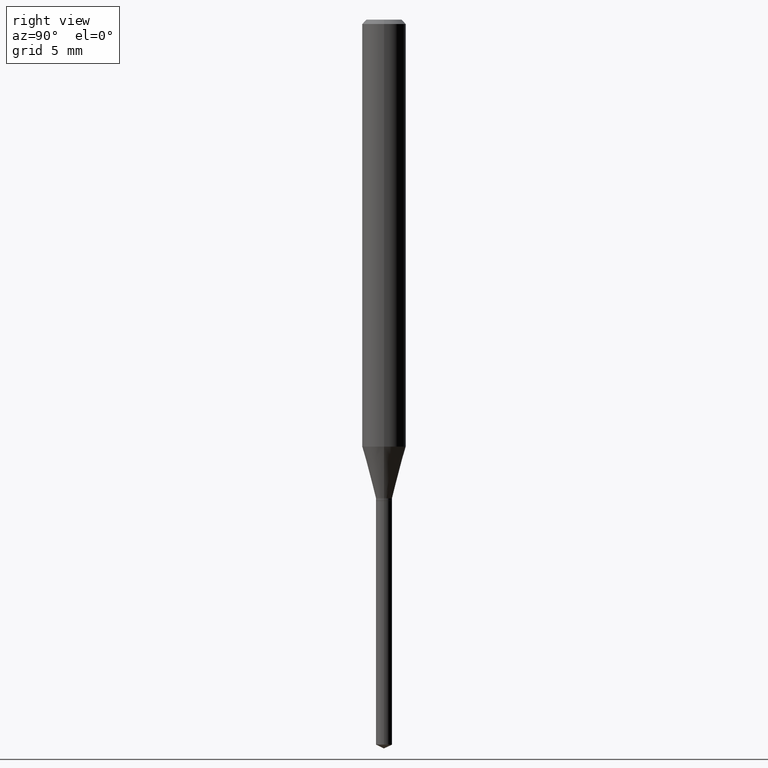
[diagram: clean part render]
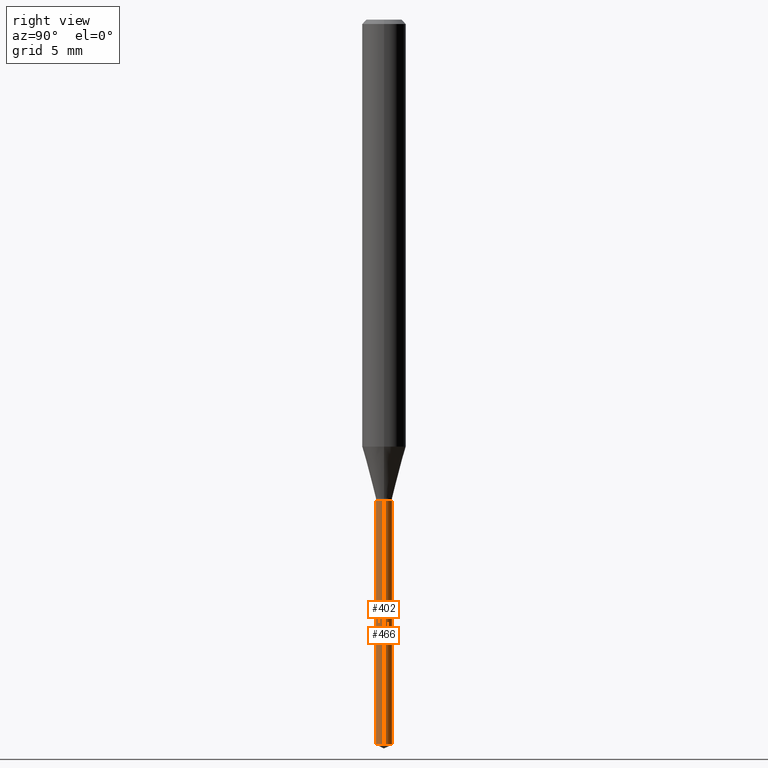
[diagram: same view with one multi-face feature highlighted, each face labeled with its STEP entity id]
A machine part, right view. The highlighted faces form ONE feature: a constant-radius fillet chain: 2 tangent blend faces with common blend radius 0.5499 mm. The faces share edges in the B-rep.
Their STEP definitions:
[1] entity #402 (Cylinder):
#10 = VERTEX_POINT ( 'NONE', #36 ) ;
#36 = CARTESIAN_POINT ( 'NONE',  ( 0.02164999999999999564, -4.689059438066343179E-15, -1.299699999999999855 ) ) ;
#42 = AXIS2_PLACEMENT_3D ( 'NONE', #217, #479, #243 ) ;
#57 = CARTESIAN_POINT ( 'NONE',  ( 3.178375807398821559E-29, -4.537878296094435448E-15, -1.299699999999999855 ) ) ;
#109 = EDGE_CURVE ( 'NONE', #451, #230, #310, .T. ) ;
#116 = EDGE_CURVE ( 'NONE', #451, #454, #209, .T. ) ;
#131 = AXIS2_PLACEMENT_3D ( 'NONE', #134, #288, #286 ) ;
#134 = CARTESIAN_POINT ( 'NONE',  ( 3.178375807398821559E-29, -4.537878296094435448E-15, -1.299699999999999855 ) ) ;
#193 = EDGE_LOOP ( 'NONE', ( #196, #426, #461, #308 ) ) ;
#196 = ORIENTED_EDGE ( 'NONE', *, *, #109, .F. ) ;
#203 = VECTOR ( 'NONE', #405, 39.37007874015748143 ) ;
#207 = DIRECTION ( 'NONE',  ( -2.445468806185136597E-29, 3.491481338843145583E-15, 1.000000000000000000 ) ) ;
#209 = CIRCLE ( 'NONE', #42, 0.02164999999999999564 ) ;
#216 = AXIS2_PLACEMENT_3D ( 'NONE', #57, #207, #389 ) ;
#217 = CARTESIAN_POINT ( 'NONE',  ( 4.790439700363498334E-29, -6.839478294047094651E-15, -1.958904439200944481 ) ) ;
#230 = VERTEX_POINT ( 'NONE', #397 ) ;
#243 = DIRECTION ( 'NONE',  ( 1.000000000000000000, -6.982962677686269866E-15, 0.000000000000000000 ) ) ;
#252 = CIRCLE ( 'NONE', #131, 0.02164999999999999564 ) ;
#259 = CARTESIAN_POINT ( 'NONE',  ( -0.02164999999999999564, -4.384045793802373345E-15, -1.299699999999999855 ) ) ;
#268 = CARTESIAN_POINT ( 'NONE',  ( 0.02164999999999999564, -4.689059438066343179E-15, -1.299699999999999855 ) ) ;
#286 = DIRECTION ( 'NONE',  ( 1.000000000000000000, -6.982962677686269866E-15, 0.000000000000000000 ) ) ;
#288 = DIRECTION ( 'NONE',  ( -2.445468806185136597E-29, 3.491481338843145583E-15, 1.000000000000000000 ) ) ;
#308 = ORIENTED_EDGE ( 'NONE', *, *, #485, .F. ) ;
#310 = LINE ( 'NONE', #259, #203 ) ;
#318 = DIRECTION ( 'NONE',  ( -2.445468806185136877E-29, 3.491481338843145188E-15, 1.000000000000000000 ) ) ;
#351 = CYLINDRICAL_SURFACE ( 'NONE', #216, 0.02164999999999999564 ) ;
#389 = DIRECTION ( 'NONE',  ( 1.000000000000000000, -6.982962677686269866E-15, 0.000000000000000000 ) ) ;
#395 = FACE_OUTER_BOUND ( 'NONE', #193, .T. ) ;
#397 = CARTESIAN_POINT ( 'NONE',  ( -0.02164999999999999564, -5.534845792778702158E-15, -1.299699999999999855 ) ) ;
#402 = ADVANCED_FACE ( 'NONE', ( #395 ), #351, .T. ) ;
#403 = CARTESIAN_POINT ( 'NONE',  ( 0.02165000000000000258, -6.990659436019002382E-15, -1.958904439200944481 ) ) ;
#405 = DIRECTION ( 'NONE',  ( -2.445468806185136877E-29, 3.491481338843145188E-15, 1.000000000000000000 ) ) ;
#406 = CARTESIAN_POINT ( 'NONE',  ( -0.02165000000000000258, -6.685645791755032548E-15, -1.958904439200944481 ) ) ;
#426 = ORIENTED_EDGE ( 'NONE', *, *, #116, .T. ) ;
#437 = EDGE_CURVE ( 'NONE', #454, #10, #457, .T. ) ;
#451 = VERTEX_POINT ( 'NONE', #406 ) ;
#454 = VERTEX_POINT ( 'NONE', #403 ) ;
#457 = LINE ( 'NONE', #268, #459 ) ;
#459 = VECTOR ( 'NONE', #318, 39.37007874015748143 ) ;
#461 = ORIENTED_EDGE ( 'NONE', *, *, #437, .T. ) ;
#479 = DIRECTION ( 'NONE',  ( -2.445468806185136597E-29, 3.491481338843145583E-15, 1.000000000000000000 ) ) ;
#485 = EDGE_CURVE ( 'NONE', #230, #10, #252, .T. ) ;
[2] entity #466 (Cylinder):
#10 = VERTEX_POINT ( 'NONE', #36 ) ;
#16 = CARTESIAN_POINT ( 'NONE',  ( 3.178375807398821559E-29, -4.537878296094435448E-15, -1.299699999999999855 ) ) ;
#20 = CYLINDRICAL_SURFACE ( 'NONE', #171, 0.02164999999999999564 ) ;
#36 = CARTESIAN_POINT ( 'NONE',  ( 0.02164999999999999564, -4.689059438066343179E-15, -1.299699999999999855 ) ) ;
#63 = DIRECTION ( 'NONE',  ( -2.445468806185136597E-29, 3.491481338843145583E-15, 1.000000000000000000 ) ) ;
#100 = CIRCLE ( 'NONE', #222, 0.02164999999999999564 ) ;
#105 = DIRECTION ( 'NONE',  ( -2.445468806185136597E-29, 3.491481338843145583E-15, 1.000000000000000000 ) ) ;
#109 = EDGE_CURVE ( 'NONE', #451, #230, #310, .T. ) ;
#115 = ORIENTED_EDGE ( 'NONE', *, *, #302, .T. ) ;
#132 = AXIS2_PLACEMENT_3D ( 'NONE', #360, #322, #363 ) ;
#142 = DIRECTION ( 'NONE',  ( 1.000000000000000000, -6.982962677686269866E-15, 0.000000000000000000 ) ) ;
#171 = AXIS2_PLACEMENT_3D ( 'NONE', #16, #63, #327 ) ;
#203 = VECTOR ( 'NONE', #405, 39.37007874015748143 ) ;
#222 = AXIS2_PLACEMENT_3D ( 'NONE', #254, #105, #142 ) ;
#227 = ORIENTED_EDGE ( 'NONE', *, *, #437, .F. ) ;
#230 = VERTEX_POINT ( 'NONE', #397 ) ;
#231 = ORIENTED_EDGE ( 'NONE', *, *, #449, .F. ) ;
#254 = CARTESIAN_POINT ( 'NONE',  ( 4.790439700363498334E-29, -6.839478294047094651E-15, -1.958904439200944481 ) ) ;
#259 = CARTESIAN_POINT ( 'NONE',  ( -0.02164999999999999564, -4.384045793802373345E-15, -1.299699999999999855 ) ) ;
#268 = CARTESIAN_POINT ( 'NONE',  ( 0.02164999999999999564, -4.689059438066343179E-15, -1.299699999999999855 ) ) ;
#284 = FACE_OUTER_BOUND ( 'NONE', #453, .T. ) ;
#302 = EDGE_CURVE ( 'NONE', #454, #451, #100, .T. ) ;
#310 = LINE ( 'NONE', #259, #203 ) ;
#316 = ORIENTED_EDGE ( 'NONE', *, *, #109, .T. ) ;
#318 = DIRECTION ( 'NONE',  ( -2.445468806185136877E-29, 3.491481338843145188E-15, 1.000000000000000000 ) ) ;
#322 = DIRECTION ( 'NONE',  ( -2.445468806185136597E-29, 3.491481338843145583E-15, 1.000000000000000000 ) ) ;
#327 = DIRECTION ( 'NONE',  ( 1.000000000000000000, -6.982962677686269866E-15, 0.000000000000000000 ) ) ;
#360 = CARTESIAN_POINT ( 'NONE',  ( 3.178375807398821559E-29, -4.537878296094435448E-15, -1.299699999999999855 ) ) ;
#363 = DIRECTION ( 'NONE',  ( 1.000000000000000000, -6.982962677686269866E-15, 0.000000000000000000 ) ) ;
#397 = CARTESIAN_POINT ( 'NONE',  ( -0.02164999999999999564, -5.534845792778702158E-15, -1.299699999999999855 ) ) ;
#400 = CIRCLE ( 'NONE', #132, 0.02164999999999999564 ) ;
#403 = CARTESIAN_POINT ( 'NONE',  ( 0.02165000000000000258, -6.990659436019002382E-15, -1.958904439200944481 ) ) ;
#405 = DIRECTION ( 'NONE',  ( -2.445468806185136877E-29, 3.491481338843145188E-15, 1.000000000000000000 ) ) ;
#406 = CARTESIAN_POINT ( 'NONE',  ( -0.02165000000000000258, -6.685645791755032548E-15, -1.958904439200944481 ) ) ;
#437 = EDGE_CURVE ( 'NONE', #454, #10, #457, .T. ) ;
#449 = EDGE_CURVE ( 'NONE', #10, #230, #400, .T. ) ;
#451 = VERTEX_POINT ( 'NONE', #406 ) ;
#453 = EDGE_LOOP ( 'NONE', ( #115, #316, #231, #227 ) ) ;
#454 = VERTEX_POINT ( 'NONE', #403 ) ;
#457 = LINE ( 'NONE', #268, #459 ) ;
#459 = VECTOR ( 'NONE', #318, 39.37007874015748143 ) ;
#466 = ADVANCED_FACE ( 'NONE', ( #284 ), #20, .T. ) ;